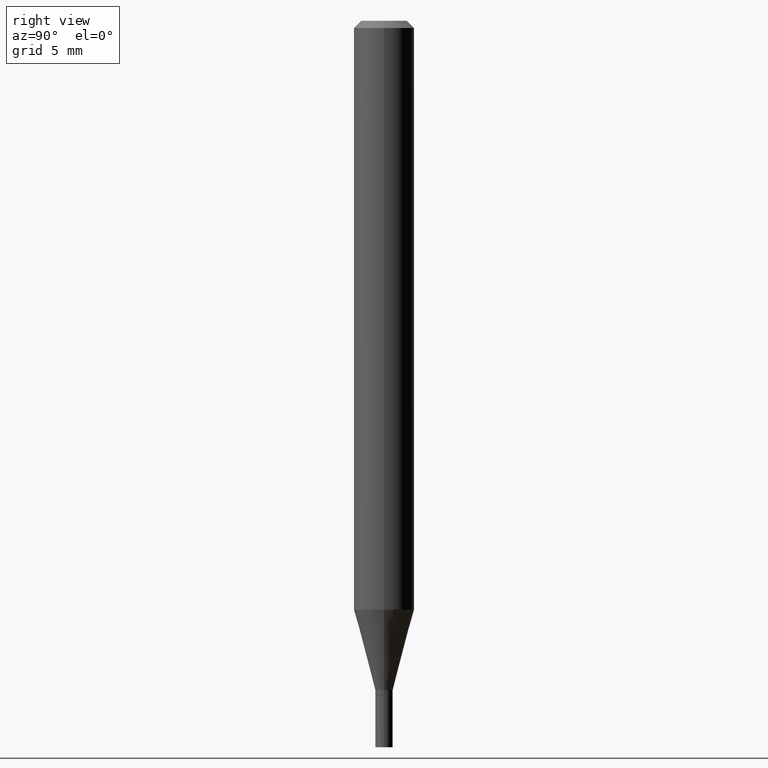
[diagram: clean part render]
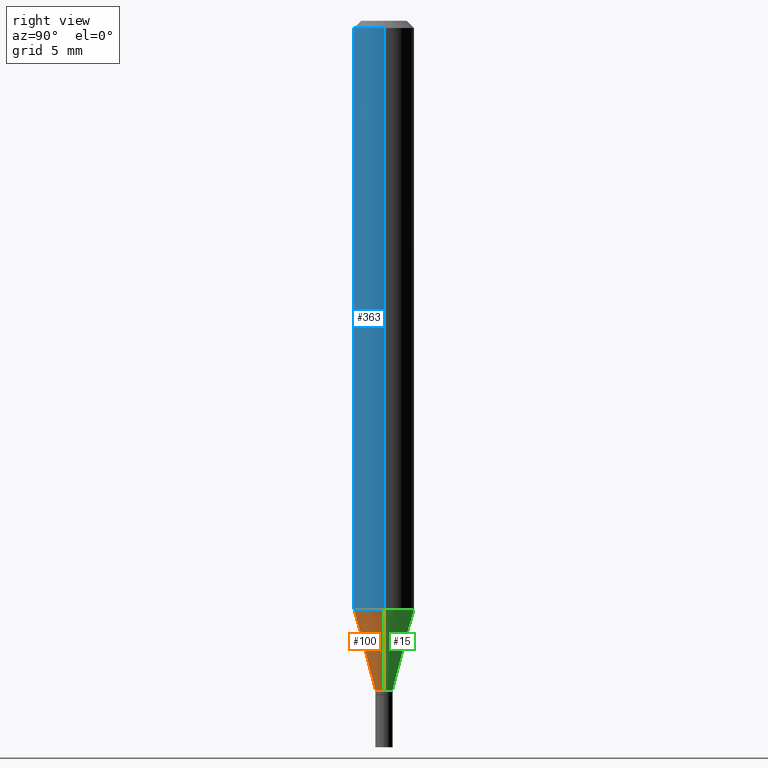
[diagram: same view with three faces highlighted in distinct colors, each labeled with its STEP entity id]
A machine part, right view with three faces highlighted in distinct colors.
Their STEP definitions:

[orange] entity #100 — the highlighted conical surface has half-angle 15 deg.
#7 = CARTESIAN_POINT ( 'NONE',  ( -0.06250000000000001388, -3.801285834545430586E-15, -1.215923739063185183 ) ) ;
#8 = EDGE_CURVE ( 'NONE', #48, #260, #223, .T. ) ;
#11 = VERTEX_POINT ( 'NONE', #122 ) ;
#13 = CIRCLE ( 'NONE', #464, 0.06250000000000000000 ) ;
#48 = VERTEX_POINT ( 'NONE', #118 ) ;
#53 = DIRECTION ( 'NONE',  ( 1.000000000000000000, -6.982962677686256455E-15, 0.000000000000000000 ) ) ;
#75 = EDGE_LOOP ( 'NONE', ( #439, #301, #155, #370 ) ) ;
#98 = AXIS2_PLACEMENT_3D ( 'NONE', #372, #237, #53 ) ;
#100 = ADVANCED_FACE ( 'NONE', ( #101 ), #120, .T. ) ;
#101 = FACE_OUTER_BOUND ( 'NONE', #75, .T. ) ;
#115 = DIRECTION ( 'NONE',  ( -0.2588190451025211836, 5.211531920934547886E-15, 0.9659258262890679791 ) ) ;
#118 = CARTESIAN_POINT ( 'NONE',  ( -0.01799999999999991884, -4.249307676194920787E-15, -1.382000000000000117 ) ) ;
#120 = CONICAL_SURFACE ( 'NONE', #178, 0.01799999999999991884, 0.2617993877991499074 ) ;
#122 = CARTESIAN_POINT ( 'NONE',  ( 0.06250000000000001388, -4.681810211750884871E-15, -1.215923739063185183 ) ) ;
#133 = CARTESIAN_POINT ( 'NONE',  ( 0.01799999999999991884, -4.950920538479579759E-15, -1.382000000000000117 ) ) ;
#155 = ORIENTED_EDGE ( 'NONE', *, *, #243, .T. ) ;
#178 = AXIS2_PLACEMENT_3D ( 'NONE', #315, #349, #203 ) ;
#203 = DIRECTION ( 'NONE',  ( 1.000000000000000000, -6.982962677686256455E-15, 0.000000000000000000 ) ) ;
#222 = CARTESIAN_POINT ( 'NONE',  ( 2.973503574579014958E-29, -4.245375044395493202E-15, -1.215923739063185183 ) ) ;
#223 = LINE ( 'NONE', #269, #273 ) ;
#237 = DIRECTION ( 'NONE',  ( -2.445468806185136597E-29, 3.491481338843145583E-15, 1.000000000000000000 ) ) ;
#243 = EDGE_CURVE ( 'NONE', #437, #11, #312, .T. ) ;
#260 = VERTEX_POINT ( 'NONE', #7 ) ;
#269 = CARTESIAN_POINT ( 'NONE',  ( -0.01799999999999991884, -4.697329517844410199E-15, -1.382000000000000117 ) ) ;
#273 = VECTOR ( 'NONE', #115, 39.37007874015748854 ) ;
#290 = EDGE_CURVE ( 'NONE', #260, #11, #13, .T. ) ;
#301 = ORIENTED_EDGE ( 'NONE', *, *, #433, .T. ) ;
#308 = CARTESIAN_POINT ( 'NONE',  ( 0.01799999999999991884, -4.950920538479579759E-15, -1.382000000000000117 ) ) ;
#311 = CIRCLE ( 'NONE', #98, 0.01799999999999991884 ) ;
#312 = LINE ( 'NONE', #133, #379 ) ;
#315 = CARTESIAN_POINT ( 'NONE',  ( 3.379637890147859239E-29, -4.825227210281227557E-15, -1.382000000000000117 ) ) ;
#332 = DIRECTION ( 'NONE',  ( 1.000000000000000000, -6.982962677686270655E-15, 0.000000000000000000 ) ) ;
#349 = DIRECTION ( 'NONE',  ( -2.445468806185136597E-29, 3.491481338843145583E-15, 1.000000000000000000 ) ) ;
#368 = DIRECTION ( 'NONE',  ( -2.445468806185136597E-29, 3.491481338843145583E-15, 1.000000000000000000 ) ) ;
#370 = ORIENTED_EDGE ( 'NONE', *, *, #290, .F. ) ;
#372 = CARTESIAN_POINT ( 'NONE',  ( 3.379637890147859239E-29, -4.825227210281227557E-15, -1.382000000000000117 ) ) ;
#379 = VECTOR ( 'NONE', #385, 39.37007874015748854 ) ;
#385 = DIRECTION ( 'NONE',  ( 0.2588190451025211836, 1.565188264969622559E-15, 0.9659258262890679791 ) ) ;
#433 = EDGE_CURVE ( 'NONE', #48, #437, #311, .T. ) ;
#437 = VERTEX_POINT ( 'NONE', #308 ) ;
#439 = ORIENTED_EDGE ( 'NONE', *, *, #8, .F. ) ;
#464 = AXIS2_PLACEMENT_3D ( 'NONE', #222, #368, #332 ) ;

[blue] entity #363 — the highlighted cylindrical surface (edge-blend (fillet) strip) has radius 1.5875 mm, axis along (-0, 0, 1).
#3 = DIRECTION ( 'NONE',  ( -2.445468806185136597E-29, 3.491481338843145583E-15, 1.000000000000000000 ) ) ;
#7 = CARTESIAN_POINT ( 'NONE',  ( -0.06250000000000001388, -3.801285834545430586E-15, -1.215923739063185183 ) ) ;
#11 = VERTEX_POINT ( 'NONE', #122 ) ;
#13 = CIRCLE ( 'NONE', #464, 0.06250000000000000000 ) ;
#24 = AXIS2_PLACEMENT_3D ( 'NONE', #321, #3, #428 ) ;
#80 = DIRECTION ( 'NONE',  ( 1.000000000000000000, -6.982962677686266711E-15, 0.000000000000000000 ) ) ;
#92 = CARTESIAN_POINT ( 'NONE',  ( -0.06250000000000000000, 4.440892098500626162E-16, -3.074334431409316114E-30 ) ) ;
#104 = CARTESIAN_POINT ( 'NONE',  ( -0.06250000000000000000, -1.704784422389007524E-15, -0.01499999999999999944 ) ) ;
#114 = CARTESIAN_POINT ( 'NONE',  ( 3.668203209277705088E-31, -5.237222008264718399E-17, -0.01499999999999999944 ) ) ;
#122 = CARTESIAN_POINT ( 'NONE',  ( 0.06250000000000001388, -4.681810211750884871E-15, -1.215923739063185183 ) ) ;
#124 = VERTEX_POINT ( 'NONE', #241 ) ;
#136 = EDGE_CURVE ( 'NONE', #260, #295, #458, .T. ) ;
#153 = ORIENTED_EDGE ( 'NONE', *, *, #290, .T. ) ;
#167 = VECTOR ( 'NONE', #390, 39.37007874015748143 ) ;
#168 = LINE ( 'NONE', #280, #214 ) ;
#175 = CYLINDRICAL_SURFACE ( 'NONE', #24, 0.06250000000000000000 ) ;
#179 = AXIS2_PLACEMENT_3D ( 'NONE', #114, #261, #80 ) ;
#183 = ORIENTED_EDGE ( 'NONE', *, *, #136, .F. ) ;
#214 = VECTOR ( 'NONE', #454, 39.37007874015748143 ) ;
#219 = EDGE_LOOP ( 'NONE', ( #183, #153, #357, #272 ) ) ;
#222 = CARTESIAN_POINT ( 'NONE',  ( 2.973503574579014958E-29, -4.245375044395493202E-15, -1.215923739063185183 ) ) ;
#236 = EDGE_CURVE ( 'NONE', #11, #124, #168, .T. ) ;
#241 = CARTESIAN_POINT ( 'NONE',  ( 0.06250000000000000000, -4.888073874380388472E-16, -0.01499999999999999944 ) ) ;
#260 = VERTEX_POINT ( 'NONE', #7 ) ;
#261 = DIRECTION ( 'NONE',  ( -2.445468806185136597E-29, 3.491481338843145583E-15, 1.000000000000000000 ) ) ;
#272 = ORIENTED_EDGE ( 'NONE', *, *, #429, .F. ) ;
#280 = CARTESIAN_POINT ( 'NONE',  ( 0.06250000000000000000, -4.364351673553916694E-16, 3.047610484872459871E-30 ) ) ;
#290 = EDGE_CURVE ( 'NONE', #260, #11, #13, .T. ) ;
#295 = VERTEX_POINT ( 'NONE', #104 ) ;
#321 = CARTESIAN_POINT ( 'NONE',  ( 0.000000000000000000, 0.000000000000000000, 0.000000000000000000 ) ) ;
#332 = DIRECTION ( 'NONE',  ( 1.000000000000000000, -6.982962677686270655E-15, 0.000000000000000000 ) ) ;
#357 = ORIENTED_EDGE ( 'NONE', *, *, #236, .T. ) ;
#363 = ADVANCED_FACE ( 'NONE', ( #440 ), #175, .T. ) ;
#368 = DIRECTION ( 'NONE',  ( -2.445468806185136597E-29, 3.491481338843145583E-15, 1.000000000000000000 ) ) ;
#390 = DIRECTION ( 'NONE',  ( -2.445468806185136877E-29, 3.491481338843145188E-15, 1.000000000000000000 ) ) ;
#428 = DIRECTION ( 'NONE',  ( 1.000000000000000000, -6.982962677686266711E-15, 4.876176775795935793E-29 ) ) ;
#429 = EDGE_CURVE ( 'NONE', #295, #124, #436, .T. ) ;
#436 = CIRCLE ( 'NONE', #179, 0.06250000000000000000 ) ;
#440 = FACE_OUTER_BOUND ( 'NONE', #219, .T. ) ;
#454 = DIRECTION ( 'NONE',  ( -2.445468806185136877E-29, 3.491481338843145188E-15, 1.000000000000000000 ) ) ;
#458 = LINE ( 'NONE', #92, #167 ) ;
#464 = AXIS2_PLACEMENT_3D ( 'NONE', #222, #368, #332 ) ;

[green] entity #15 — the highlighted conical surface has half-angle 15 deg.
#7 = CARTESIAN_POINT ( 'NONE',  ( -0.06250000000000001388, -3.801285834545430586E-15, -1.215923739063185183 ) ) ;
#8 = EDGE_CURVE ( 'NONE', #48, #260, #223, .T. ) ;
#11 = VERTEX_POINT ( 'NONE', #122 ) ;
#15 = ADVANCED_FACE ( 'NONE', ( #408 ), #354, .T. ) ;
#17 = DIRECTION ( 'NONE',  ( -2.445468806185136597E-29, 3.491481338843145583E-15, 1.000000000000000000 ) ) ;
#35 = CIRCLE ( 'NONE', #249, 0.06250000000000000000 ) ;
#43 = CIRCLE ( 'NONE', #106, 0.01799999999999991884 ) ;
#47 = EDGE_CURVE ( 'NONE', #437, #48, #43, .T. ) ;
#48 = VERTEX_POINT ( 'NONE', #118 ) ;
#66 = AXIS2_PLACEMENT_3D ( 'NONE', #87, #162, #381 ) ;
#87 = CARTESIAN_POINT ( 'NONE',  ( 3.379637890147859239E-29, -4.825227210281227557E-15, -1.382000000000000117 ) ) ;
#106 = AXIS2_PLACEMENT_3D ( 'NONE', #342, #17, #449 ) ;
#108 = ORIENTED_EDGE ( 'NONE', *, *, #8, .T. ) ;
#115 = DIRECTION ( 'NONE',  ( -0.2588190451025211836, 5.211531920934547886E-15, 0.9659258262890679791 ) ) ;
#118 = CARTESIAN_POINT ( 'NONE',  ( -0.01799999999999991884, -4.249307676194920787E-15, -1.382000000000000117 ) ) ;
#122 = CARTESIAN_POINT ( 'NONE',  ( 0.06250000000000001388, -4.681810211750884871E-15, -1.215923739063185183 ) ) ;
#133 = CARTESIAN_POINT ( 'NONE',  ( 0.01799999999999991884, -4.950920538479579759E-15, -1.382000000000000117 ) ) ;
#162 = DIRECTION ( 'NONE',  ( -2.445468806185136597E-29, 3.491481338843145583E-15, 1.000000000000000000 ) ) ;
#180 = ORIENTED_EDGE ( 'NONE', *, *, #387, .F. ) ;
#187 = ORIENTED_EDGE ( 'NONE', *, *, #47, .T. ) ;
#215 = CARTESIAN_POINT ( 'NONE',  ( 2.973503574579014958E-29, -4.245375044395493202E-15, -1.215923739063185183 ) ) ;
#223 = LINE ( 'NONE', #269, #273 ) ;
#243 = EDGE_CURVE ( 'NONE', #437, #11, #312, .T. ) ;
#248 = DIRECTION ( 'NONE',  ( 1.000000000000000000, -6.982962677686270655E-15, 0.000000000000000000 ) ) ;
#249 = AXIS2_PLACEMENT_3D ( 'NONE', #215, #286, #248 ) ;
#260 = VERTEX_POINT ( 'NONE', #7 ) ;
#269 = CARTESIAN_POINT ( 'NONE',  ( -0.01799999999999991884, -4.697329517844410199E-15, -1.382000000000000117 ) ) ;
#273 = VECTOR ( 'NONE', #115, 39.37007874015748854 ) ;
#286 = DIRECTION ( 'NONE',  ( -2.445468806185136597E-29, 3.491481338843145583E-15, 1.000000000000000000 ) ) ;
#299 = ORIENTED_EDGE ( 'NONE', *, *, #243, .F. ) ;
#308 = CARTESIAN_POINT ( 'NONE',  ( 0.01799999999999991884, -4.950920538479579759E-15, -1.382000000000000117 ) ) ;
#312 = LINE ( 'NONE', #133, #379 ) ;
#342 = CARTESIAN_POINT ( 'NONE',  ( 3.379637890147859239E-29, -4.825227210281227557E-15, -1.382000000000000117 ) ) ;
#354 = CONICAL_SURFACE ( 'NONE', #66, 0.01799999999999991884, 0.2617993877991499074 ) ;
#379 = VECTOR ( 'NONE', #385, 39.37007874015748854 ) ;
#381 = DIRECTION ( 'NONE',  ( 1.000000000000000000, -6.982962677686256455E-15, 0.000000000000000000 ) ) ;
#385 = DIRECTION ( 'NONE',  ( 0.2588190451025211836, 1.565188264969622559E-15, 0.9659258262890679791 ) ) ;
#387 = EDGE_CURVE ( 'NONE', #11, #260, #35, .T. ) ;
#408 = FACE_OUTER_BOUND ( 'NONE', #465, .T. ) ;
#437 = VERTEX_POINT ( 'NONE', #308 ) ;
#449 = DIRECTION ( 'NONE',  ( 1.000000000000000000, -6.982962677686256455E-15, 0.000000000000000000 ) ) ;
#465 = EDGE_LOOP ( 'NONE', ( #187, #108, #180, #299 ) ) ;